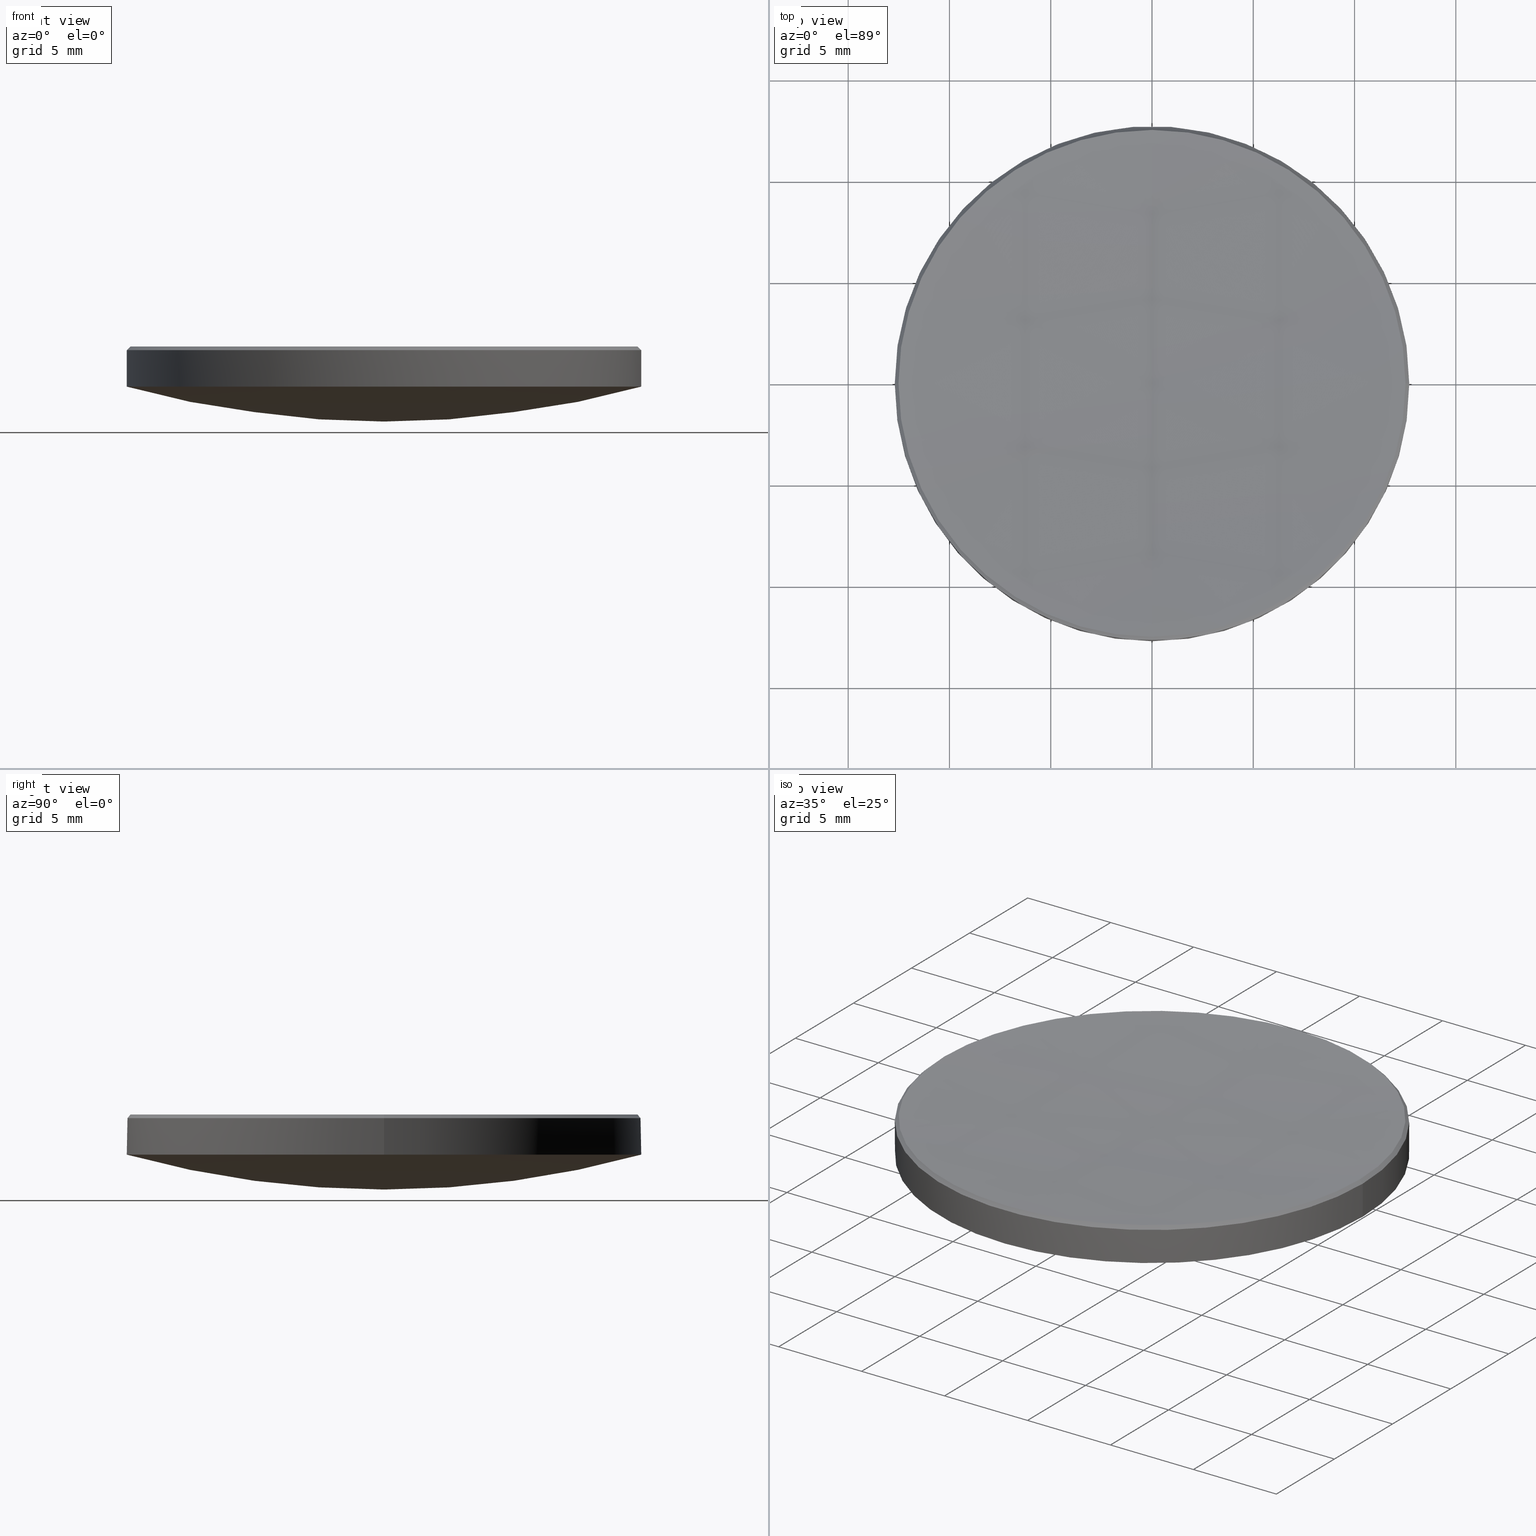
[diagram: canonical four-view strip — front | top / right | iso, engineering-drawing reading convention]
A machine part, canonical four-view strip (front | top / right | iso — engineering-drawing reading convention). The complete STEP part file that produces these views, byte-faithful:
ISO-10303-21;
HEADER;
FILE_DESCRIPTION (( 'STEP AP214' ),
    '1' );
FILE_NAME ('GLM2-025B-150-UV.STEP',
    '2024-08-09T02:43:40',
    ( 'Windows User' ),
    ( 'P R C' ),
    'SwSTEP 2.0',
    'SolidWorks 2022',
    '' );
FILE_SCHEMA (( 'AUTOMOTIVE_DESIGN' ));
ENDSEC;

DATA;
#1 = CARTESIAN_POINT ( 'NONE',  ( 0.000000000000000000, 0.000000000000000000, 4.000000000000000000 ) ) ;
#2 = VECTOR ( 'NONE', #239, 1000.000000000000114 ) ;
#3 = CARTESIAN_POINT ( 'NONE',  ( 0.000000000000000000, 0.000000000000000000, 5.984419064290369406 ) ) ;
#4 = EDGE_CURVE ( 'NONE', #207, #127, #39, .T. ) ;
#5 = CARTESIAN_POINT ( 'NONE',  ( -1.555301434917138827E-15, -12.70000000000000284, 4.000000000000001776 ) ) ;
#6 = DIRECTION ( 'NONE',  ( -1.000000000000000000, 0.000000000000000000, 0.000000000000000000 ) ) ;
#7 =( NAMED_UNIT ( * ) PLANE_ANGLE_UNIT ( ) SI_UNIT ( $, .RADIAN. ) );
#8 = CIRCLE ( 'NONE', #118, 12.51558093570960040 ) ;
#9 = AXIS2_PLACEMENT_3D ( 'NONE', #3, #268, #76 ) ;
#10 = EDGE_LOOP ( 'NONE', ( #62, #204, #184, #123, #119 ) ) ;
#11 = SURFACE_STYLE_USAGE ( .BOTH. , #122 ) ;
#12 = ORIENTED_EDGE ( 'NONE', *, *, #78, .T. ) ;
#13 =( NAMED_UNIT ( * ) SI_UNIT ( $, .STERADIAN. ) SOLID_ANGLE_UNIT ( ) );
#14 = ORIENTED_EDGE ( 'NONE', *, *, #269, .T. ) ;
#15 = EDGE_CURVE ( 'NONE', #59, #183, #194, .T. ) ;
#16 = AXIS2_PLACEMENT_3D ( 'NONE', #170, #278, #68 ) ;
#17 = ORIENTED_EDGE ( 'NONE', *, *, #98, .F. ) ;
#18 = CARTESIAN_POINT ( 'NONE',  ( 0.000000000000000000, 0.000000000000000000, 5.984419064290369406 ) ) ;
#19 = DIRECTION ( 'NONE',  ( -0.000000000000000000, -0.000000000000000000, 1.000000000000000000 ) ) ;
#20 = DIRECTION ( 'NONE',  ( -1.224646799147353207E-16, -1.000000000000000000, 0.000000000000000000 ) ) ;
#21 = DIRECTION ( 'NONE',  ( -1.000000000000000000, 1.224646799147353207E-16, 0.000000000000000000 ) ) ;
#22 = CARTESIAN_POINT ( 'NONE',  ( 0.000000000000000000, 0.000000000000000000, 4.000000000000000000 ) ) ;
#23 = PRODUCT_DEFINITION ( 'δ֪', '', #279, #277 ) ;
#24 = AXIS2_PLACEMENT_3D ( 'NONE', #153, #262, #191 ) ;
#25 = DIRECTION ( 'NONE',  ( 0.000000000000000000, 1.000000000000000000, 0.000000000000000000 ) ) ;
#26 = DIRECTION ( 'NONE',  ( -0.7071067811865642261, 0.000000000000000000, -0.7071067811865309194 ) ) ;
#27 = CIRCLE ( 'NONE', #187, 47.64000000000000057 ) ;
#28 = DIRECTION ( 'NONE',  ( -1.000000000000000000, 0.000000000000000000, 0.000000000000000000 ) ) ;
#29 = AXIS2_PLACEMENT_3D ( 'NONE', #91, #71, #44 ) ;
#30 = VERTEX_POINT ( 'NONE', #282 ) ;
#31 = ORIENTED_EDGE ( 'NONE', *, *, #70, .T. ) ;
#32 = AXIS2_PLACEMENT_3D ( 'NONE', #1, #109, #280 ) ;
#33 = ORIENTED_EDGE ( 'NONE', *, *, #105, .T. ) ;
#34 = ADVANCED_FACE ( 'NONE', ( #233 ), #133, .T. ) ;
#35 = FILL_AREA_STYLE_COLOUR ( '', #93 ) ;
#36 = ORIENTED_EDGE ( 'NONE', *, *, #256, .T. ) ;
#37 = CIRCLE ( 'NONE', #171, 47.64000000000000057 ) ;
#38 = EDGE_LOOP ( 'NONE', ( #274, #12, #17, #255 ) ) ;
#39 = CIRCLE ( 'NONE', #24, 12.69999999999999929 ) ;
#40 = CARTESIAN_POINT ( 'NONE',  ( 0.000000000000000000, 9.170155232015382598E-15, 5.460533439604065009 ) ) ;
#41 = UNCERTAINTY_MEASURE_WITH_UNIT (LENGTH_MEASURE( 1.000000000000000082E-05 ), #206, 'distance_accuracy_value', 'NONE');
#42 = CARTESIAN_POINT ( 'NONE',  ( 12.69999999999999929, 1.555301434917138433E-15, 4.000000000000000000 ) ) ;
#43 = DIRECTION ( 'NONE',  ( 1.000000000000000000, 0.000000000000000000, 0.000000000000000000 ) ) ;
#44 = DIRECTION ( 'NONE',  ( -1.000000000000000000, 0.000000000000000000, 0.000000000000000000 ) ) ;
#45 = CONICAL_SURFACE ( 'NONE', #180, 12.51558093570959329, 0.7853981633974718157 ) ;
#46 = EDGE_CURVE ( 'NONE', #207, #30, #69, .T. ) ;
#47 = FACE_OUTER_BOUND ( 'NONE', #80, .T. ) ;
#48 = CARTESIAN_POINT ( 'NONE',  ( 0.000000000000000000, 0.000000000000000000, 10.00000000000000000 ) ) ;
#49 = STYLED_ITEM ( 'NONE', ( #199 ), #211 ) ;
#50 = CARTESIAN_POINT ( 'NONE',  ( -12.51558093570960040, 0.000000000000000000, 5.984419064290369406 ) ) ;
#51 = DIRECTION ( 'NONE',  ( 1.000000000000000000, -0.000000000000000000, 0.000000000000000000 ) ) ;
#52 = CARTESIAN_POINT ( 'NONE',  ( -12.69999999999999929, 0.000000000000000000, 5.799999999999999822 ) ) ;
#53 = DIRECTION ( 'NONE',  ( -0.000000000000000000, -0.000000000000000000, 1.000000000000000000 ) ) ;
#54 = EDGE_CURVE ( 'NONE', #127, #164, #176, .T. ) ;
#55 = ORIENTED_EDGE ( 'NONE', *, *, #90, .T. ) ;
#56 = MECHANICAL_DESIGN_GEOMETRIC_PRESENTATION_REPRESENTATION (  '', ( #248 ), #224 ) ;
#57 = EDGE_LOOP ( 'NONE', ( #272, #225, #101, #14, #142 ) ) ;
#58 = SHAPE_DEFINITION_REPRESENTATION ( #216, #198 ) ;
#59 = VERTEX_POINT ( 'NONE', #40 ) ;
#60 = AXIS2_PLACEMENT_3D ( 'NONE', #265, #53, #135 ) ;
#61 = APPLICATION_PROTOCOL_DEFINITION ( 'draft international standard', 'automotive_design', 1998, #63 ) ;
#62 = ORIENTED_EDGE ( 'NONE', *, *, #276, .F. ) ;
#63 = APPLICATION_CONTEXT ( 'automotive_design' ) ;
#64 = ORIENTED_EDGE ( 'NONE', *, *, #221, .T. ) ;
#65 = CIRCLE ( 'NONE', #9, 12.51558093570960040 ) ;
#66 = DIRECTION ( 'NONE',  ( 0.000000000000000000, 0.000000000000000000, -1.000000000000000000 ) ) ;
#67 = SPHERICAL_SURFACE ( 'NONE', #75, 47.64000000000000057 ) ;
#68 = DIRECTION ( 'NONE',  ( 0.000000000000000000, 1.000000000000000000, 0.000000000000000000 ) ) ;
#69 = LINE ( 'NONE', #257, #229 ) ;
#70 = EDGE_CURVE ( 'NONE', #127, #207, #175, .T. ) ;
#71 = DIRECTION ( 'NONE',  ( 0.000000000000000000, 0.000000000000000000, -1.000000000000000000 ) ) ;
#72 = DIRECTION ( 'NONE',  ( 0.000000000000000000, 1.000000000000000000, 0.000000000000000000 ) ) ;
#73 = CARTESIAN_POINT ( 'NONE',  ( 0.000000000000000000, 0.000000000000000000, 155.2205334396041110 ) ) ;
#74 = CARTESIAN_POINT ( 'NONE',  ( 0.000000000000000000, 0.000000000000000000, 5.984419064290369406 ) ) ;
#75 = AXIS2_PLACEMENT_3D ( 'NONE', #151, #189, #232 ) ;
#76 = DIRECTION ( 'NONE',  ( 1.000000000000000000, 0.000000000000000000, 0.000000000000000000 ) ) ;
#77 = SPHERICAL_SURFACE ( 'NONE', #217, 149.7600000000000193 ) ;
#78 = EDGE_CURVE ( 'NONE', #81, #223, #27, .T. ) ;
#79 = AXIS2_PLACEMENT_3D ( 'NONE', #215, #43, #66 ) ;
#80 = EDGE_LOOP ( 'NONE', ( #167, #64, #103, #82 ) ) ;
#81 = VERTEX_POINT ( 'NONE', #152 ) ;
#82 = ORIENTED_EDGE ( 'NONE', *, *, #201, .F. ) ;
#83 = EDGE_LOOP ( 'NONE', ( #228, #275, #33, #36, #85 ) ) ;
#84 = CONICAL_SURFACE ( 'NONE', #29, 12.51558093570959329, 0.7853981633974718157 ) ;
#85 = ORIENTED_EDGE ( 'NONE', *, *, #46, .F. ) ;
#86 = CARTESIAN_POINT ( 'NONE',  ( 0.000000000000000000, 12.51558093570944230, 5.984419064290369406 ) ) ;
#87 = FACE_OUTER_BOUND ( 'NONE', #10, .T. ) ;
#88 = CARTESIAN_POINT ( 'NONE',  ( 0.000000000000000000, 0.000000000000000000, 155.2205334396041110 ) ) ;
#89 = DIRECTION ( 'NONE',  ( -0.000000000000000000, -0.000000000000000000, -1.000000000000000000 ) ) ;
#90 = EDGE_CURVE ( 'NONE', #59, #144, #102, .T. ) ;
#91 = CARTESIAN_POINT ( 'NONE',  ( 0.000000000000000000, 0.000000000000000000, 5.984419064290396939 ) ) ;
#92 = FILL_AREA_STYLE_COLOUR ( '', #213 ) ;
#93 = COLOUR_RGB ( '',1.000000000000000000, 1.000000000000000000, 1.000000000000000000 ) ;
#94 = DIRECTION ( 'NONE',  ( -1.000000000000000000, 0.000000000000000000, 0.000000000000000000 ) ) ;
#95 = LINE ( 'NONE', #179, #136 ) ;
#96 = CIRCLE ( 'NONE', #32, 12.69999999999999929 ) ;
#97 = DIRECTION ( 'NONE',  ( -0.000000000000000000, -0.000000000000000000, 1.000000000000000000 ) ) ;
#98 = EDGE_CURVE ( 'NONE', #30, #223, #132, .T. ) ;
#99 = ORIENTED_EDGE ( 'NONE', *, *, #201, .T. ) ;
#100 =( NAMED_UNIT ( * ) SI_UNIT ( $, .STERADIAN. ) SOLID_ANGLE_UNIT ( ) );
#101 = ORIENTED_EDGE ( 'NONE', *, *, #193, .F. ) ;
#102 = CIRCLE ( 'NONE', #161, 149.7600000000000193 ) ;
#103 = ORIENTED_EDGE ( 'NONE', *, *, #105, .F. ) ;
#104 = DIRECTION ( 'NONE',  ( 1.000000000000000000, 0.000000000000000000, 0.000000000000000000 ) ) ;
#105 = EDGE_CURVE ( 'NONE', #164, #124, #96, .T. ) ;
#106 = DIRECTION ( 'NONE',  ( -1.224646799147353207E-16, -1.000000000000000000, 0.000000000000000000 ) ) ;
#107 = FACE_OUTER_BOUND ( 'NONE', #271, .T. ) ;
#108 = AXIS2_PLACEMENT_3D ( 'NONE', #48, #266, #94 ) ;
#109 = DIRECTION ( 'NONE',  ( -0.000000000000000000, -0.000000000000000000, 1.000000000000000000 ) ) ;
#110 = DIRECTION ( 'NONE',  ( 0.000000000000000000, 0.000000000000000000, -1.000000000000000000 ) ) ;
#111 = FILL_AREA_STYLE ('',( #92 ) ) ;
#112 = PRESENTATION_LAYER_ASSIGNMENT (  '', '', ( #49 ) ) ;
#113 = VECTOR ( 'NONE', #89, 1000.000000000000000 ) ;
#114 = CYLINDRICAL_SURFACE ( 'NONE', #242, 12.69999999999999929 ) ;
#115 = SURFACE_STYLE_FILL_AREA ( #111 ) ;
#116 = EDGE_CURVE ( 'NONE', #144, #208, #169, .T. ) ;
#117 = CARTESIAN_POINT ( 'NONE',  ( 12.51558093570960040, 1.544009024077889242E-15, 5.984419064290369406 ) ) ;
#118 = AXIS2_PLACEMENT_3D ( 'NONE', #210, #19, #104 ) ;
#119 = ORIENTED_EDGE ( 'NONE', *, *, #168, .F. ) ;
#120 =( GEOMETRIC_REPRESENTATION_CONTEXT ( 3 ) GLOBAL_UNCERTAINTY_ASSIGNED_CONTEXT ( ( #249 ) ) GLOBAL_UNIT_ASSIGNED_CONTEXT ( ( #195, #7, #140 ) ) REPRESENTATION_CONTEXT ( 'NONE', 'WORKASPACE' ) );
#121 = ORIENTED_EDGE ( 'NONE', *, *, #90, .F. ) ;
#122 = SURFACE_SIDE_STYLE ('',( #244 ) ) ;
#123 = ORIENTED_EDGE ( 'NONE', *, *, #269, .F. ) ;
#124 = VERTEX_POINT ( 'NONE', #190 ) ;
#125 = MECHANICAL_DESIGN_GEOMETRIC_PRESENTATION_REPRESENTATION (  '', ( #49 ), #120 ) ;
#126 = ADVANCED_FACE ( 'NONE', ( #87 ), #84, .T. ) ;
#127 = VERTEX_POINT ( 'NONE', #172 ) ;
#128 = CARTESIAN_POINT ( 'NONE',  ( 0.000000000000000000, 0.000000000000000000, 49.91600592386058111 ) ) ;
#129 = DIRECTION ( 'NONE',  ( 0.000000000000000000, 0.000000000000000000, -1.000000000000000000 ) ) ;
#130 = UNCERTAINTY_MEASURE_WITH_UNIT (LENGTH_MEASURE( 1.000000000000000082E-05 ), #222, 'distance_accuracy_value', 'NONE');
#131 = CARTESIAN_POINT ( 'NONE',  ( 12.69999999999999929, 1.555301434917138433E-15, 10.00000000000000000 ) ) ;
#132 = CIRCLE ( 'NONE', #154, 12.69999999999999929 ) ;
#133 = SPHERICAL_SURFACE ( 'NONE', #16, 47.64000000000000057 ) ;
#134 = CARTESIAN_POINT ( 'NONE',  ( -1.532716613238620527E-15, -12.51558093570944230, 5.984419064290369406 ) ) ;
#135 = DIRECTION ( 'NONE',  ( 1.000000000000000000, 0.000000000000000000, 0.000000000000000000 ) ) ;
#136 = VECTOR ( 'NONE', #26, 1000.000000000000114 ) ;
#137 = DIRECTION ( 'NONE',  ( -0.000000000000000000, -0.000000000000000000, 1.000000000000000000 ) ) ;
#138 = SURFACE_STYLE_USAGE ( .BOTH. , #157 ) ;
#139 = PRODUCT_RELATED_PRODUCT_CATEGORY ( 'part', '', ( #264 ) ) ;
#140 =( NAMED_UNIT ( * ) SI_UNIT ( $, .STERADIAN. ) SOLID_ANGLE_UNIT ( ) );
#141 = DIRECTION ( 'NONE',  ( -1.000000000000000000, 0.000000000000000000, 0.000000000000000000 ) ) ;
#142 = ORIENTED_EDGE ( 'NONE', *, *, #70, .F. ) ;
#143 = PRESENTATION_STYLE_ASSIGNMENT (( #11 ) ) ;
#144 = VERTEX_POINT ( 'NONE', #134 ) ;
#145 = CIRCLE ( 'NONE', #60, 12.69999999999999929 ) ;
#146 = APPLICATION_PROTOCOL_DEFINITION ( 'draft international standard', 'automotive_design', 1998, #263 ) ;
#147 = ORIENTED_EDGE ( 'NONE', *, *, #15, .F. ) ;
#148 = ADVANCED_FACE ( 'NONE', ( #155 ), #45, .T. ) ;
#149 = CIRCLE ( 'NONE', #258, 12.69999999999999929 ) ;
#150 = CLOSED_SHELL ( 'NONE', ( #126, #177, #34, #230, #185, #156, #214, #148 ) ) ;
#151 = CARTESIAN_POINT ( 'NONE',  ( 0.000000000000000000, 0.000000000000000000, 49.91600592386058111 ) ) ;
#152 = CARTESIAN_POINT ( 'NONE',  ( 0.000000000000000000, 2.917108675568995142E-15, 2.276005923860582758 ) ) ;
#153 = CARTESIAN_POINT ( 'NONE',  ( 0.000000000000000000, 0.000000000000000000, 5.799999999999999822 ) ) ;
#154 = AXIS2_PLACEMENT_3D ( 'NONE', #173, #209, #261 ) ;
#155 = FACE_OUTER_BOUND ( 'NONE', #57, .T. ) ;
#156 = ADVANCED_FACE ( 'NONE', ( #47 ), #67, .T. ) ;
#157 = SURFACE_SIDE_STYLE ('',( #115 ) ) ;
#158 = AXIS2_PLACEMENT_3D ( 'NONE', #165, #188, #246 ) ;
#159 = CARTESIAN_POINT ( 'NONE',  ( 12.51558093570959329, 1.532716613238638868E-15, 5.984419064290396939 ) ) ;
#160 = CARTESIAN_POINT ( 'NONE',  ( 0.000000000000000000, 0.000000000000000000, 49.91600592386058111 ) ) ;
#161 = AXIS2_PLACEMENT_3D ( 'NONE', #88, #21, #20 ) ;
#162 = FACE_OUTER_BOUND ( 'NONE', #83, .T. ) ;
#163 = ORIENTED_EDGE ( 'NONE', *, *, #116, .T. ) ;
#164 = VERTEX_POINT ( 'NONE', #42 ) ;
#165 = CARTESIAN_POINT ( 'NONE',  ( 0.000000000000000000, 0.000000000000000000, 0.000000000000000000 ) ) ;
#166 = ORIENTED_EDGE ( 'NONE', *, *, #15, .T. ) ;
#167 = ORIENTED_EDGE ( 'NONE', *, *, #78, .F. ) ;
#168 = EDGE_CURVE ( 'NONE', #183, #253, #8, .T. ) ;
#169 = CIRCLE ( 'NONE', #235, 12.51558093570960040 ) ;
#170 = CARTESIAN_POINT ( 'NONE',  ( 0.000000000000000000, 0.000000000000000000, 49.91600592386058111 ) ) ;
#171 = AXIS2_PLACEMENT_3D ( 'NONE', #160, #51, #238 ) ;
#172 = CARTESIAN_POINT ( 'NONE',  ( 12.69999999999999929, 1.555301434917138433E-15, 5.799999999999999822 ) ) ;
#173 = CARTESIAN_POINT ( 'NONE',  ( 0.000000000000000000, 0.000000000000000000, 4.000000000000000000 ) ) ;
#174 = CARTESIAN_POINT ( 'NONE',  ( 0.000000000000000000, 0.000000000000000000, 5.799999999999999822 ) ) ;
#175 = CIRCLE ( 'NONE', #182, 12.69999999999999929 ) ;
#176 = LINE ( 'NONE', #131, #113 ) ;
#177 = ADVANCED_FACE ( 'NONE', ( #107 ), #281, .F. ) ;
#178 = CARTESIAN_POINT ( 'NONE',  ( 0.000000000000000000, 0.000000000000000000, 10.00000000000000000 ) ) ;
#179 = CARTESIAN_POINT ( 'NONE',  ( -12.51558093570959329, 0.000000000000000000, 5.984419064290396939 ) ) ;
#180 = AXIS2_PLACEMENT_3D ( 'NONE', #259, #129, #236 ) ;
#181 = EDGE_LOOP ( 'NONE', ( #245, #31, #205, #186, #99 ) ) ;
#182 = AXIS2_PLACEMENT_3D ( 'NONE', #174, #110, #212 ) ;
#183 = VERTEX_POINT ( 'NONE', #86 ) ;
#184 = ORIENTED_EDGE ( 'NONE', *, *, #4, .F. ) ;
#185 = ADVANCED_FACE ( 'NONE', ( #220 ), #219, .T. ) ;
#186 = ORIENTED_EDGE ( 'NONE', *, *, #98, .T. ) ;
#187 = AXIS2_PLACEMENT_3D ( 'NONE', #128, #192, #106 ) ;
#188 = DIRECTION ( 'NONE',  ( 0.000000000000000000, 0.000000000000000000, 1.000000000000000000 ) ) ;
#189 = DIRECTION ( 'NONE',  ( -1.000000000000000000, 0.000000000000000000, 0.000000000000000000 ) ) ;
#190 = CARTESIAN_POINT ( 'NONE',  ( 0.000000000000000000, 12.70000000000000284, 4.000000000000001776 ) ) ;
#191 = DIRECTION ( 'NONE',  ( 1.000000000000000000, 0.000000000000000000, 0.000000000000000000 ) ) ;
#192 = DIRECTION ( 'NONE',  ( -1.000000000000000000, 1.224646799147353207E-16, 0.000000000000000000 ) ) ;
#193 = EDGE_CURVE ( 'NONE', #253, #144, #267, .T. ) ;
#194 = CIRCLE ( 'NONE', #79, 149.7600000000000193 ) ;
#195 =( LENGTH_UNIT ( ) NAMED_UNIT ( * ) SI_UNIT ( .MILLI., .METRE. ) );
#196 = CARTESIAN_POINT ( 'NONE',  ( 0.000000000000000000, 0.000000000000000000, 155.2205334396041110 ) ) ;
#197 = LINE ( 'NONE', #159, #2 ) ;
#198 = ADVANCED_BREP_SHAPE_REPRESENTATION ( 'GLM2-025B-150-UV', ( #211, #158 ), #202 ) ;
#199 = PRESENTATION_STYLE_ASSIGNMENT (( #138 ) ) ;
#200 = AXIS2_PLACEMENT_3D ( 'NONE', #74, #97, #240 ) ;
#201 = EDGE_CURVE ( 'NONE', #223, #164, #145, .T. ) ;
#202 =( GEOMETRIC_REPRESENTATION_CONTEXT ( 3 ) GLOBAL_UNCERTAINTY_ASSIGNED_CONTEXT ( ( #41 ) ) GLOBAL_UNIT_ASSIGNED_CONTEXT ( ( #206, #254, #13 ) ) REPRESENTATION_CONTEXT ( 'NONE', 'WORKASPACE' ) );
#203 =( NAMED_UNIT ( * ) PLANE_ANGLE_UNIT ( ) SI_UNIT ( $, .RADIAN. ) );
#204 = ORIENTED_EDGE ( 'NONE', *, *, #241, .T. ) ;
#205 = ORIENTED_EDGE ( 'NONE', *, *, #46, .T. ) ;
#206 =( LENGTH_UNIT ( ) NAMED_UNIT ( * ) SI_UNIT ( .MILLI., .METRE. ) );
#207 = VERTEX_POINT ( 'NONE', #52 ) ;
#208 = VERTEX_POINT ( 'NONE', #117 ) ;
#209 = DIRECTION ( 'NONE',  ( -0.000000000000000000, -0.000000000000000000, 1.000000000000000000 ) ) ;
#210 = CARTESIAN_POINT ( 'NONE',  ( 0.000000000000000000, 0.000000000000000000, 5.984419064290369406 ) ) ;
#211 = MANIFOLD_SOLID_BREP ( '����1', #150 ) ;
#212 = DIRECTION ( 'NONE',  ( 1.000000000000000000, 0.000000000000000000, 0.000000000000000000 ) ) ;
#213 = COLOUR_RGB ( '',1.000000000000000000, 1.000000000000000000, 1.000000000000000000 ) ;
#214 = ADVANCED_FACE ( 'NONE', ( #270 ), #77, .F. ) ;
#215 = CARTESIAN_POINT ( 'NONE',  ( 0.000000000000000000, 0.000000000000000000, 155.2205334396041110 ) ) ;
#216 = PRODUCT_DEFINITION_SHAPE ( 'NONE', 'NONE',  #23 ) ;
#217 = AXIS2_PLACEMENT_3D ( 'NONE', #73, #141, #25 ) ;
#218 = DIRECTION ( 'NONE',  ( 1.000000000000000000, 0.000000000000000000, 0.000000000000000000 ) ) ;
#219 = CYLINDRICAL_SURFACE ( 'NONE', #108, 12.69999999999999929 ) ;
#220 = FACE_OUTER_BOUND ( 'NONE', #181, .T. ) ;
#221 = EDGE_CURVE ( 'NONE', #81, #124, #37, .T. ) ;
#222 =( LENGTH_UNIT ( ) NAMED_UNIT ( * ) SI_UNIT ( .MILLI., .METRE. ) );
#223 = VERTEX_POINT ( 'NONE', #5 ) ;
#224 =( GEOMETRIC_REPRESENTATION_CONTEXT ( 3 ) GLOBAL_UNCERTAINTY_ASSIGNED_CONTEXT ( ( #130 ) ) GLOBAL_UNIT_ASSIGNED_CONTEXT ( ( #222, #203, #100 ) ) REPRESENTATION_CONTEXT ( 'NONE', 'WORKASPACE' ) );
#225 = ORIENTED_EDGE ( 'NONE', *, *, #116, .F. ) ;
#226 = AXIS2_PLACEMENT_3D ( 'NONE', #196, #6, #72 ) ;
#227 = ORIENTED_EDGE ( 'NONE', *, *, #168, .T. ) ;
#228 = ORIENTED_EDGE ( 'NONE', *, *, #4, .T. ) ;
#229 = VECTOR ( 'NONE', #231, 1000.000000000000000 ) ;
#230 = ADVANCED_FACE ( 'NONE', ( #162 ), #114, .T. ) ;
#231 = DIRECTION ( 'NONE',  ( -0.000000000000000000, -0.000000000000000000, -1.000000000000000000 ) ) ;
#232 = DIRECTION ( 'NONE',  ( 0.000000000000000000, 1.000000000000000000, 0.000000000000000000 ) ) ;
#233 = FACE_OUTER_BOUND ( 'NONE', #38, .T. ) ;
#234 = DIRECTION ( 'NONE',  ( -0.000000000000000000, -0.000000000000000000, 1.000000000000000000 ) ) ;
#235 = AXIS2_PLACEMENT_3D ( 'NONE', #18, #234, #260 ) ;
#236 = DIRECTION ( 'NONE',  ( -1.000000000000000000, 0.000000000000000000, 0.000000000000000000 ) ) ;
#237 = PRESENTATION_LAYER_ASSIGNMENT (  '', '', ( #248 ) ) ;
#238 = DIRECTION ( 'NONE',  ( 0.000000000000000000, 0.000000000000000000, -1.000000000000000000 ) ) ;
#239 = DIRECTION ( 'NONE',  ( 0.7071067811865642261, 8.659560562355136236E-17, -0.7071067811865309194 ) ) ;
#240 = DIRECTION ( 'NONE',  ( 1.000000000000000000, 0.000000000000000000, 0.000000000000000000 ) ) ;
#241 = EDGE_CURVE ( 'NONE', #208, #127, #197, .T. ) ;
#242 = AXIS2_PLACEMENT_3D ( 'NONE', #178, #243, #28 ) ;
#243 = DIRECTION ( 'NONE',  ( -0.000000000000000000, -0.000000000000000000, -1.000000000000000000 ) ) ;
#244 = SURFACE_STYLE_FILL_AREA ( #252 ) ;
#245 = ORIENTED_EDGE ( 'NONE', *, *, #54, .F. ) ;
#246 = DIRECTION ( 'NONE',  ( 1.000000000000000000, 0.000000000000000000, 0.000000000000000000 ) ) ;
#247 = EDGE_LOOP ( 'NONE', ( #121, #166, #227, #251 ) ) ;
#248 = STYLED_ITEM ( 'NONE', ( #143 ), #198 ) ;
#249 = UNCERTAINTY_MEASURE_WITH_UNIT (LENGTH_MEASURE( 1.000000000000000082E-05 ), #195, 'distance_accuracy_value', 'NONE');
#250 = PRODUCT_CONTEXT ( 'NONE', #263, 'mechanical' ) ;
#251 = ORIENTED_EDGE ( 'NONE', *, *, #193, .T. ) ;
#252 = FILL_AREA_STYLE ('',( #35 ) ) ;
#253 = VERTEX_POINT ( 'NONE', #50 ) ;
#254 =( NAMED_UNIT ( * ) PLANE_ANGLE_UNIT ( ) SI_UNIT ( $, .RADIAN. ) );
#255 = ORIENTED_EDGE ( 'NONE', *, *, #256, .F. ) ;
#256 = EDGE_CURVE ( 'NONE', #124, #30, #149, .T. ) ;
#257 = CARTESIAN_POINT ( 'NONE',  ( -12.69999999999999929, 0.000000000000000000, 10.00000000000000000 ) ) ;
#258 = AXIS2_PLACEMENT_3D ( 'NONE', #22, #137, #218 ) ;
#259 = CARTESIAN_POINT ( 'NONE',  ( 0.000000000000000000, 0.000000000000000000, 5.984419064290396939 ) ) ;
#260 = DIRECTION ( 'NONE',  ( 1.000000000000000000, 0.000000000000000000, 0.000000000000000000 ) ) ;
#261 = DIRECTION ( 'NONE',  ( 1.000000000000000000, 0.000000000000000000, 0.000000000000000000 ) ) ;
#262 = DIRECTION ( 'NONE',  ( 0.000000000000000000, 0.000000000000000000, -1.000000000000000000 ) ) ;
#263 = APPLICATION_CONTEXT ( 'automotive_design' ) ;
#264 = PRODUCT ( 'GLM2-025B-150-UV', 'GLM2-025B-150-UV', '', ( #250 ) ) ;
#265 = CARTESIAN_POINT ( 'NONE',  ( 0.000000000000000000, 0.000000000000000000, 4.000000000000000000 ) ) ;
#266 = DIRECTION ( 'NONE',  ( -0.000000000000000000, -0.000000000000000000, -1.000000000000000000 ) ) ;
#267 = CIRCLE ( 'NONE', #200, 12.51558093570960040 ) ;
#268 = DIRECTION ( 'NONE',  ( -0.000000000000000000, -0.000000000000000000, 1.000000000000000000 ) ) ;
#269 = EDGE_CURVE ( 'NONE', #253, #207, #95, .T. ) ;
#270 = FACE_OUTER_BOUND ( 'NONE', #247, .T. ) ;
#271 = EDGE_LOOP ( 'NONE', ( #147, #55, #163, #273 ) ) ;
#272 = ORIENTED_EDGE ( 'NONE', *, *, #241, .F. ) ;
#273 = ORIENTED_EDGE ( 'NONE', *, *, #276, .T. ) ;
#274 = ORIENTED_EDGE ( 'NONE', *, *, #221, .F. ) ;
#275 = ORIENTED_EDGE ( 'NONE', *, *, #54, .T. ) ;
#276 = EDGE_CURVE ( 'NONE', #208, #183, #65, .T. ) ;
#277 = PRODUCT_DEFINITION_CONTEXT ( 'detailed design', #63, 'design' ) ;
#278 = DIRECTION ( 'NONE',  ( -1.000000000000000000, 0.000000000000000000, 0.000000000000000000 ) ) ;
#279 = PRODUCT_DEFINITION_FORMATION_WITH_SPECIFIED_SOURCE ( '�κ�', '', #264, .NOT_KNOWN. ) ;
#280 = DIRECTION ( 'NONE',  ( 1.000000000000000000, 0.000000000000000000, 0.000000000000000000 ) ) ;
#281 = SPHERICAL_SURFACE ( 'NONE', #226, 149.7600000000000193 ) ;
#282 = CARTESIAN_POINT ( 'NONE',  ( -12.69999999999999929, 0.000000000000000000, 4.000000000000000000 ) ) ;
ENDSEC;
END-ISO-10303-21;
